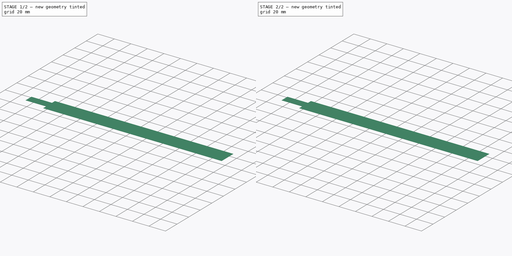
[diagram: build sequence overview — one tinted view per stage of 2, left to right]
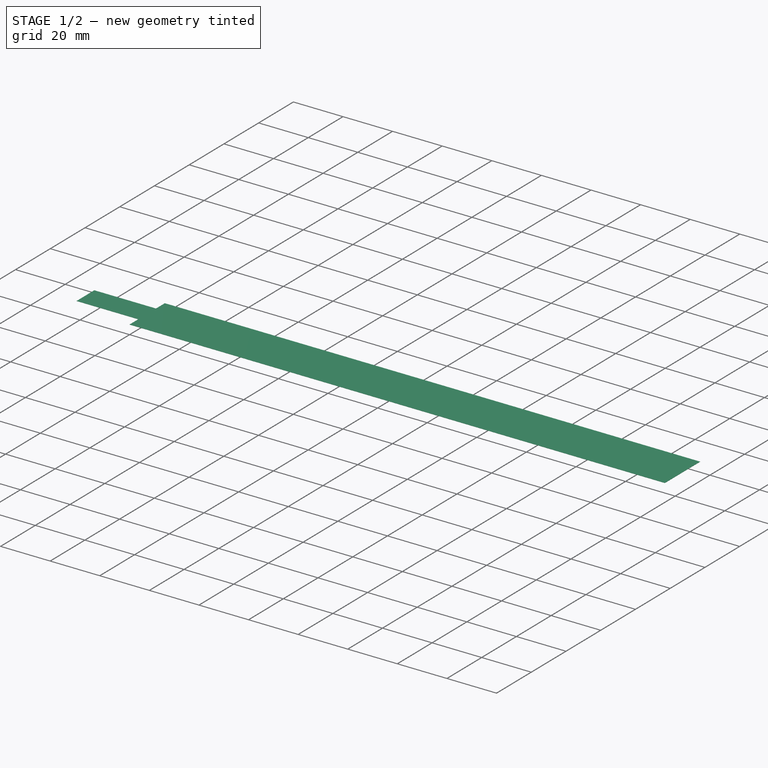
[diagram: stage 1 of 2 — iso view after this stage's code; geometry added in this stage tinted green]
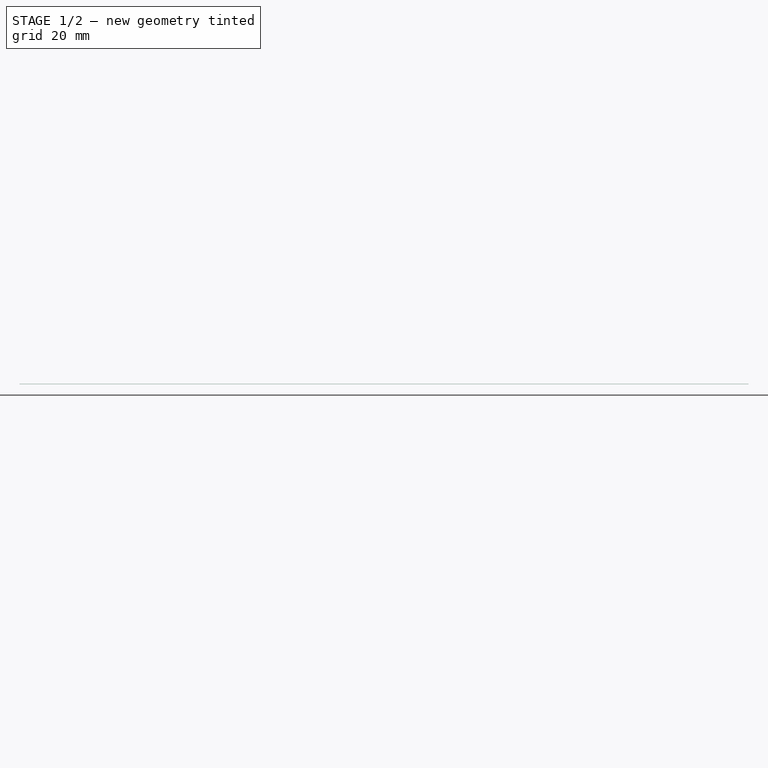
[diagram: stage 1 of 2 — front view after this stage's code; geometry added in this stage tinted green]
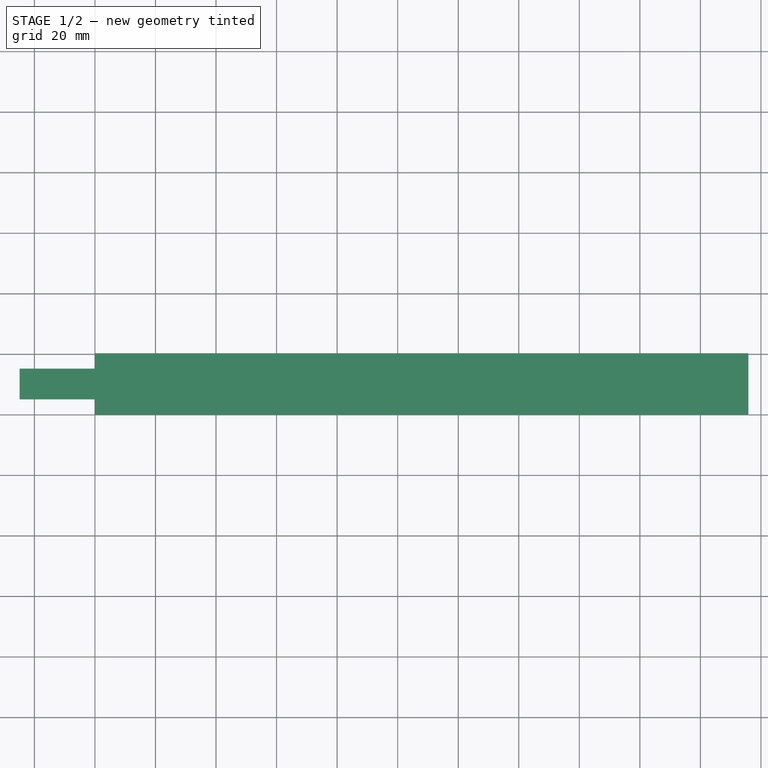
[diagram: stage 1 of 2 — top view after this stage's code; geometry added in this stage tinted green]
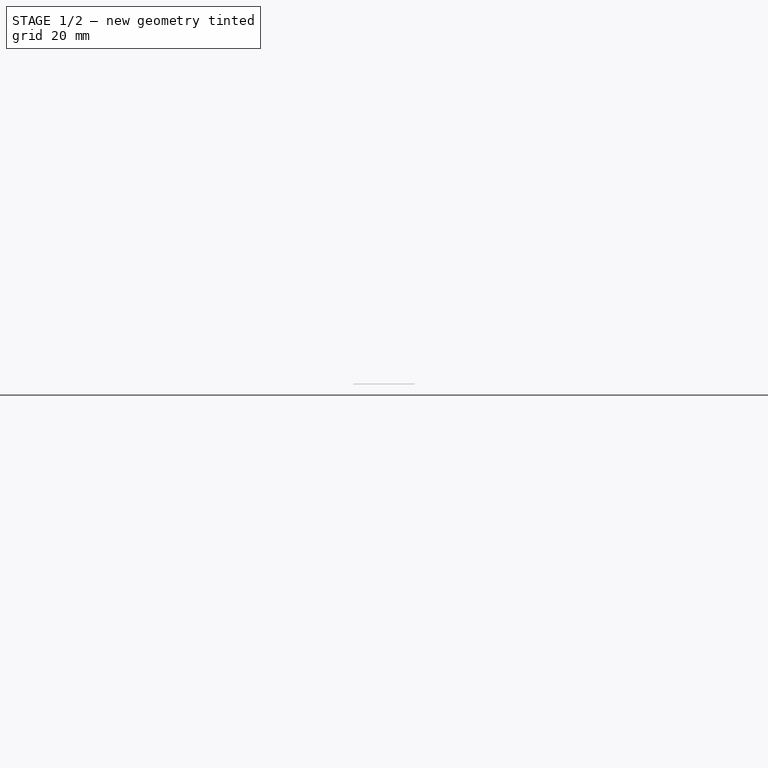
[diagram: stage 1 of 2 — right view after this stage's code; geometry added in this stage tinted green]
FCSTD DOCUMENT  (FreeCAD 0.21R33668 +26 (Git))
Label: MagnetoPotBus7
License: All rights reserved
LicenseURL: http://en.wikipedia.org/wiki/All_rights_reserved
objects: PartDesign::SubShapeBinder×2, Sketcher::SketchObject×2, PartDesign::Pad×1, PartDesign::Pocket×1, PartDesign::Body×1
note: 9 computed .brp shape members not serialized (recipe doc carries the construction recipe); baked Part::Feature solids carry a one-line shape summary decoded from their .brp
EXTERNAL_REF file=MagnetoPot/MagnetoPot.FCStd obj=Body
EXTERNAL_REF file=NormalConnectorWithPin.FCStd obj=Body
EXTERNAL_REF file=MagnetoPot/MagnetoPot.FCStd obj=Sketch
EXTERNAL_REF file=NormalConnectorWithPin.FCStd obj=Sketch002
EXTERNAL_REF file=NormalConnectorWithPin.FCStd obj=Sketch003

FEATURE [PartDesign::SubShapeBinder] Binder  label="MagnetoPot"
  BindCopyOnChange = 0
  BindMode = 0
  ClaimChildren = false
  Context = -> Body [Binder.]
  Fuse = false
  MakeFace = true
  OffsetFill = false
  OffsetIntersection = false
  OffsetJoinType = 0
  OffsetOpenResult = false
  PartialLoad = false
  Relative = true
  Support = -> [<external MagnetoPot/MagnetoPot.FCStd>#Body]
  _Version = 2
FEATURE [PartDesign::SubShapeBinder] Binder002  label="BusHoles"
  BindCopyOnChange = 0
  BindMode = 0
  ClaimChildren = false
  Context = -> Body [Binder002.]
  Fuse = false
  MakeFace = true
  OffsetFill = false
  OffsetIntersection = false
  OffsetJoinType = 0
  OffsetOpenResult = false
  PartialLoad = false
  Relative = true
  Support = -> [<external NormalConnectorWithPin.FCStd>#Body[Pocket.Sketch002.]]
  _Version = 2
FEATURE [Sketcher::SketchObject] Sketch
  ExternalGeometry = -> [Binder]
  FullyConstrained = true
  MapMode = 5
  Placement = pos=(0,0,3.5) rot=(0,0,1;0rad)
  Support = -> [Binder]
  sketch-geometry (9):
    g0: LineSegment StartX=0 StartY=20.3 StartZ=0 EndX=215.86 EndY=20.3 EndZ=0
    g1: LineSegment StartX=215.86 StartY=20.3 StartZ=0 EndX=215.86 EndY=0 EndZ=0
    g2: LineSegment StartX=215.86 StartY=0 StartZ=0 EndX=0 EndY=0 EndZ=0
    g3: LineSegment StartX=0 StartY=0 StartZ=0 EndX=0 EndY=20.3 EndZ=0
    g4: LineSegment StartX=-24.89 StartY=15.23 StartZ=0 EndX=0 EndY=15.23 EndZ=0
    g5: LineSegment StartX=0 StartY=5.07 StartZ=0 EndX=-24.89 EndY=5.07 EndZ=0
    g6: LineSegment StartX=-24.89 StartY=5.07 StartZ=0 EndX=-24.89 EndY=15.23 EndZ=0
    g7: LineSegment StartX=0 StartY=15.23 StartZ=0 EndX=0 EndY=20.3 EndZ=0
    g8: LineSegment StartX=0 StartY=5.07 StartZ=0 EndX=0 EndY=0 EndZ=0
  constraints (22):
    c: Coincident(g0,g1)
    c: Coincident(g1,g2)
    c: Coincident(g2,g3)
    c: Coincident(g3,g0)
    c: Horizontal(g0)
    c: Horizontal(g2)
    c: Vertical(g1)
    c: Vertical(g3)
    c: Coincident(g0,g-3)
    c: Coincident(g1,g-4)
    c: Coincident(g5,g6)
    c: Coincident(g6,g4)
    c: Horizontal(g4)
    c: Horizontal(g5)
    c: Coincident(g4,g-5)
    c: PointOnObject(g5,g3)
    c: Coincident(g5,g-5)
    c: Coincident(g7,g4)
    c: Coincident(g7,g0)
    c: Vertical(g7)
    c: Coincident(g8,g5)
    c: Coincident(g8,g2)
FEATURE [PartDesign::Pad] Pad
  Direction = (0,0,1)
  Length = 0.07
  Length2 = 10
  Profile = -> Sketch
  ReferenceAxis = -> Sketch [N_Axis]
  Type = 0
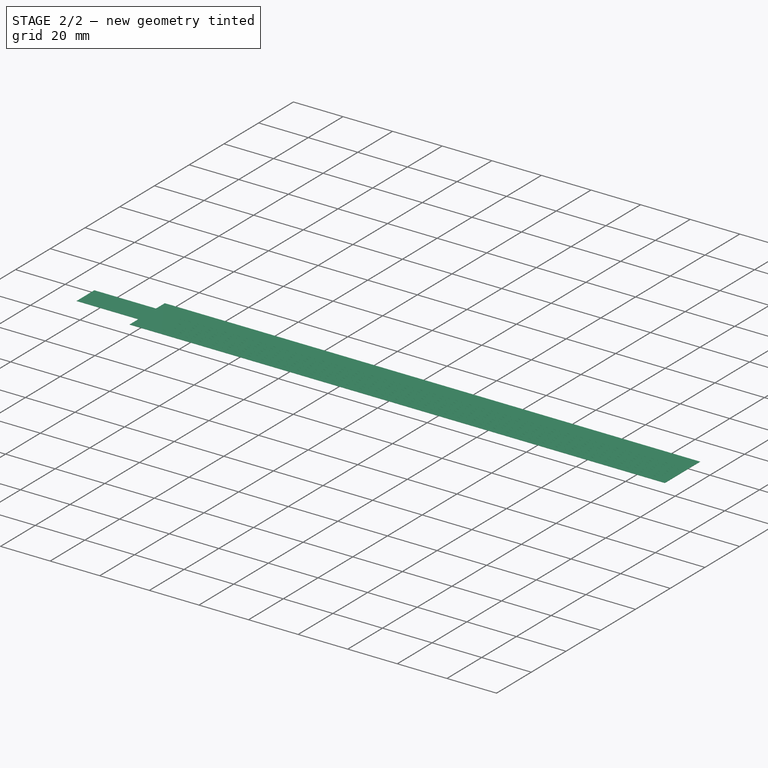
[diagram: stage 2 of 2 — iso view after this stage's code; geometry added in this stage tinted green]
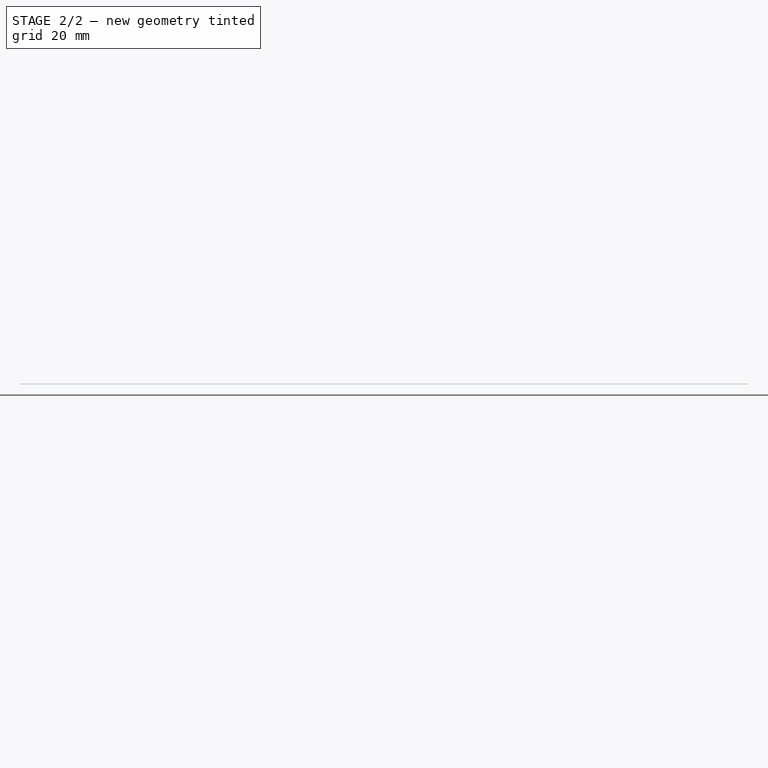
[diagram: stage 2 of 2 — front view after this stage's code; geometry added in this stage tinted green]
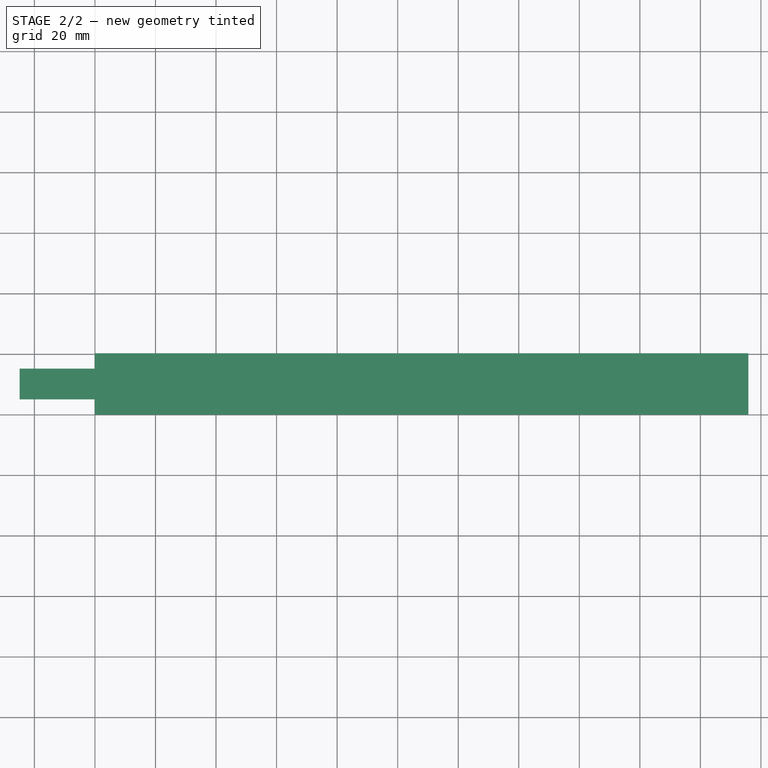
[diagram: stage 2 of 2 — top view after this stage's code; geometry added in this stage tinted green]
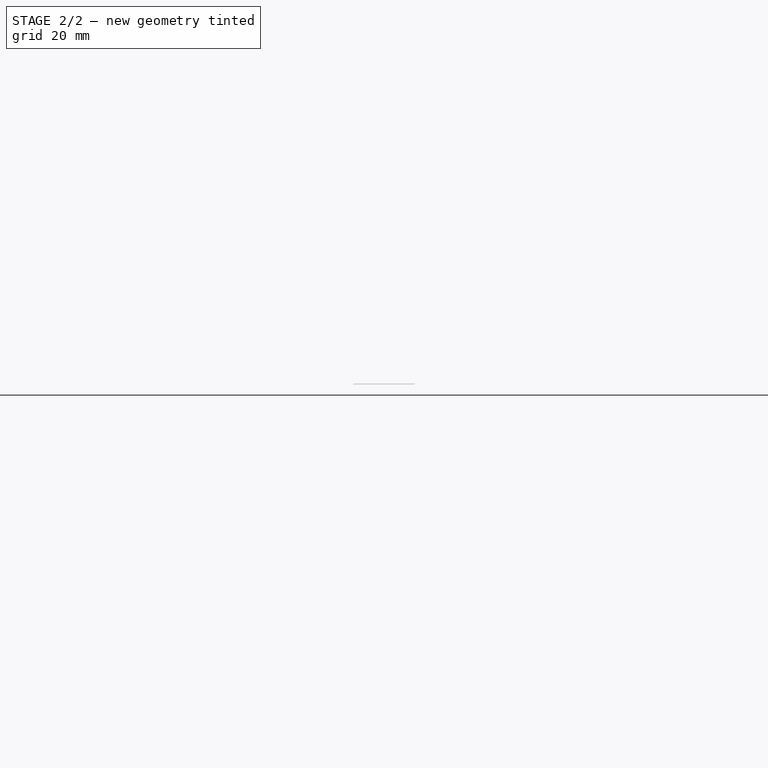
[diagram: stage 2 of 2 — right view after this stage's code; geometry added in this stage tinted green]
FEATURE [Sketcher::SketchObject] Sketch001
  ExternalGeometry = -> [Binder002,Pad]
  FullyConstrained = true
  MapMode = 5
  Placement = pos=(0,0,3.57) rot=(0,0,1;0rad)
  Support = -> [Pad]
  expr: .Constraints.ActiveLength = <<MagnetoPot>>#<<Sketch>>.Constraints.ActiveLength
  expr: Constraints[10] = .Constraints.BusVertical
  expr: Constraints[11] = .Constraints.BusHorizontal
  expr: Constraints[12] = .Constraints.BusVertical
  expr: Constraints[13] = .Constraints.BusVertical
  expr: Constraints[20] = .Constraints.BusOffset
  expr: Constraints[22] = NormalConnectorWithPin#Sketch002.Constraints.BusOutsideDistance
  expr: Constraints[45] = .Constraints.ActiveLength
  expr: Constraints[5] = NormalConnectorWithPin#Sketch003.Constraints.ActiveStartToBusDistance
  expr: Constraints[8] = .Constraints.BusVertical
  expr: Constraints[9] = .Constraints.BusVertical
  sketch-geometry (74):
    g0: GeomPoint X=7.93 Y=20.3 Z=0
    g1: GeomPoint X=207.93 Y=20.3 Z=0
    g2: GeomPoint X=107.93 Y=20.3 Z=0
    g3: GeomPoint X=11.93 Y=20.3 Z=0
    g4: GeomPoint X=11.93 Y=12.65 Z=0
    g5: GeomPoint X=11.93 Y=9.15 Z=0
    g6: GeomPoint X=11.93 Y=5.65 Z=0
    g7: GeomPoint X=11.93 Y=2.15 Z=0
    g8: GeomPoint X=14.9611 Y=3.9 Z=0
    g9: GeomPoint X=14.9611 Y=7.4 Z=0
    g10: GeomPoint X=14.9611 Y=10.9 Z=0
    g11: LineSegment StartX=15.4611 StartY=6.9 StartZ=0 EndX=215.461 EndY=6.9 EndZ=0
    g12: LineSegment StartX=215.461 StartY=6.9 StartZ=0 EndX=215.461 EndY=7.9 EndZ=0
    g13: LineSegment StartX=215.461 StartY=7.9 StartZ=0 EndX=15.4611 EndY=7.9 EndZ=0
    g14: LineSegment StartX=15.4611 StartY=7.9 StartZ=0 EndX=15.4611 EndY=6.9 EndZ=0
    g15: Circle CenterX=14.9611 CenterY=7.4 CenterZ=0 NormalX=0 NormalY=0 NormalZ=1 AngleXU=0 Radius=0.5
    g16: GeomPoint X=15.4611 Y=7.4 Z=0
    g17: Circle CenterX=215.961 CenterY=7.4 CenterZ=0 NormalX=0 NormalY=0 NormalZ=1 AngleXU=0 Radius=0.5
    g18: LineSegment StartX=15.4611 StartY=6.9 StartZ=0 EndX=14.4611 EndY=7.9 EndZ=0
    g19: LineSegment StartX=215.461 StartY=6.9 StartZ=0 EndX=216.461 EndY=7.9 EndZ=0
    g20: LineSegment StartX=11.43 StartY=2.65 StartZ=0 EndX=211.43 EndY=2.65 EndZ=0
    g21: LineSegment StartX=211.43 StartY=2.65 StartZ=0 EndX=211.43 EndY=1.65 EndZ=0
    g22: LineSegment StartX=211.43 StartY=1.65 StartZ=0 EndX=11.43 EndY=1.65 EndZ=0
    g23: LineSegment StartX=11.43 StartY=1.65 StartZ=0 EndX=11.43 EndY=2.65 EndZ=0
    g24: Circle CenterX=11.93 CenterY=2.15 CenterZ=0 NormalX=0 NormalY=0 NormalZ=1 AngleXU=0 Radius=0.5
    g25: GeomPoint X=11.43 Y=2.15 Z=0
    g26: Circle CenterX=210.93 CenterY=2.15 CenterZ=0 NormalX=0 NormalY=0 NormalZ=1 AngleXU=0 Radius=0.5
    g27: LineSegment StartX=11.43 StartY=2.65 StartZ=0 EndX=12.43 EndY=1.65 EndZ=0
    g28: LineSegment StartX=211.43 StartY=2.65 StartZ=0 EndX=210.43 EndY=1.65 EndZ=0
    g29: LineSegment StartX=14.4611 StartY=4.4 StartZ=0 EndX=214.461 EndY=4.4 EndZ=0
    g30: LineSegment StartX=214.461 StartY=4.4 StartZ=0 EndX=214.461 EndY=3.4 EndZ=0
    g31: LineSegment StartX=214.461 StartY=3.4 StartZ=0 EndX=14.4611 EndY=3.4 EndZ=0
    g32: LineSegment StartX=14.4611 StartY=3.4 StartZ=0 EndX=14.4611 EndY=4.4 EndZ=0
    g33: Circle CenterX=14.9611 CenterY=3.9 CenterZ=0 NormalX=0 NormalY=0 NormalZ=1 AngleXU=0 Radius=0.5
    g34: GeomPoint X=14.4611 Y=3.9 Z=0
    g35: Circle CenterX=213.961 CenterY=3.9 CenterZ=0 NormalX=0 NormalY=0 NormalZ=1 AngleXU=0 Radius=0.5
    g36: LineSegment StartX=14.4611 StartY=4.4 StartZ=0 EndX=15.4611 EndY=3.4 EndZ=0
    g37: LineSegment StartX=214.461 StartY=4.4 StartZ=0 EndX=213.461 EndY=3.4 EndZ=0
    g38: LineSegment StartX=11.43 StartY=9.65 StartZ=0 EndX=211.43 EndY=9.65 EndZ=0
    g39: LineSegment StartX=211.43 StartY=9.65 StartZ=0 EndX=211.43 EndY=8.65 EndZ=0
    g40: LineSegment StartX=211.43 StartY=8.65 StartZ=0 EndX=11.43 EndY=8.65 EndZ=0
    g41: LineSegment StartX=11.43 StartY=8.65 StartZ=0 EndX=11.43 EndY=9.65 EndZ=0
    g42: Circle CenterX=11.93 CenterY=9.15 CenterZ=0 NormalX=0 NormalY=0 NormalZ=1 AngleXU=0 Radius=0.5
    g43: GeomPoint X=11.43 Y=9.15 Z=0
    g44: Circle CenterX=210.93 CenterY=9.15 CenterZ=0 NormalX=0 NormalY=0 NormalZ=1 AngleXU=0 Radius=0.5
    g45: LineSegment StartX=11.43 StartY=9.65 StartZ=0 EndX=12.43 EndY=8.65 EndZ=0
    g46: LineSegment StartX=211.43 StartY=9.65 StartZ=0 EndX=210.43 EndY=8.65 EndZ=0
    g47: LineSegment StartX=11.43 StartY=13.15 StartZ=0 EndX=211.43 EndY=13.15 EndZ=0
    g48: LineSegment StartX=211.43 StartY=13.15 StartZ=0 EndX=211.43 EndY=12.15 EndZ=0
    g49: LineSegment StartX=211.43 StartY=12.15 StartZ=0 EndX=11.43 EndY=12.15 EndZ=0
    g50: LineSegment StartX=11.43 StartY=12.15 StartZ=0 EndX=11.43 EndY=13.15 EndZ=0
    g51: Circle CenterX=11.93 CenterY=12.65 CenterZ=0 NormalX=0 NormalY=0 NormalZ=1 AngleXU=0 Radius=0.5
    g52: GeomPoint X=11.43 Y=12.65 Z=0
    g53: Circle CenterX=210.93 CenterY=12.65 CenterZ=0 NormalX=0 NormalY=0 NormalZ=1 AngleXU=0 Radius=0.5
    g54: LineSegment StartX=11.43 StartY=13.15 StartZ=0 EndX=12.43 EndY=12.15 EndZ=0
    g55: LineSegment StartX=211.43 StartY=13.15 StartZ=0 EndX=210.43 EndY=12.15 EndZ=0
    g56: LineSegment StartX=12.43 StartY=5.15 StartZ=0 EndX=212.43 EndY=5.15 EndZ=0
    g57: LineSegment StartX=212.43 StartY=5.15 StartZ=0 EndX=212.43 EndY=6.15 EndZ=0
    g58: LineSegment StartX=212.43 StartY=6.15 StartZ=0 EndX=12.43 EndY=6.15 EndZ=0
    g59: LineSegment StartX=12.43 StartY=6.15 StartZ=0 EndX=12.43 EndY=5.15 EndZ=0
    g60: Circle CenterX=11.93 CenterY=5.65 CenterZ=0 NormalX=0 NormalY=0 NormalZ=1 AngleXU=0 Radius=0.5
    g61: GeomPoint X=12.43 Y=5.65 Z=0
    g62: Circle CenterX=212.93 CenterY=5.65 CenterZ=0 NormalX=0 NormalY=0 NormalZ=1 AngleXU=0 Radius=0.5
    g63: LineSegment StartX=12.43 StartY=5.15 StartZ=0 EndX=11.43 EndY=6.15 EndZ=0
    g64: LineSegment StartX=212.43 StartY=5.15 StartZ=0 EndX=213.43 EndY=6.15 EndZ=0
    g65: LineSegment StartX=15.4611 StartY=10.4 StartZ=0 EndX=215.461 EndY=10.4 EndZ=0
    g66: LineSegment StartX=215.461 StartY=10.4 StartZ=0 EndX=215.461 EndY=11.4 EndZ=0
    g67: LineSegment StartX=215.461 StartY=11.4 StartZ=0 EndX=15.4611 EndY=11.4 EndZ=0
    g68: LineSegment StartX=15.4611 StartY=11.4 StartZ=0 EndX=15.4611 EndY=10.4 EndZ=0
    g69: Circle CenterX=14.9611 CenterY=10.9 CenterZ=0 NormalX=0 NormalY=0 NormalZ=1 AngleXU=0 Radius=0.5
    g70: GeomPoint X=15.4611 Y=10.9 Z=0
    g71: Circle CenterX=215.961 CenterY=10.9 CenterZ=0 NormalX=0 NormalY=0 NormalZ=1 AngleXU=0 Radius=0.5
    g72: LineSegment StartX=15.4611 StartY=10.4 StartZ=0 EndX=14.4611 EndY=11.4 EndZ=0
    g73: LineSegment StartX=215.461 StartY=10.4 StartZ=0 EndX=216.461 EndY=11.4 EndZ=0
  constraints (203):
    c: PointOnObject(g0,g-17)
    c: Symmetric(g1,g0,g2)
    c: Symmetric(g-17,g-17,g2)
    c: DistanceX(g0,g1) = 200  'ActiveLength'
    c: PointOnObject(g3,g-17)
    c: DistanceX(g0,g3) = 4
    c: DistanceY(g-12,g-10) = 3.5  'BusVertical'
    c: DistanceX(g-10,g-11) = 3.03109  'BusHorizontal'
    c: DistanceY(g5,g4) = 3.5
    c: DistanceY(g6,g5) = 3.5
    c: DistanceY(g7,g6) = 3.5
    c: DistanceX(g7,g8) = 3.03109
    c: DistanceY(g8,g9) = 3.5
    c: DistanceY(g9,g10) = 3.5
    c: Vertical(g9,g8)
    c: Vertical(g9,g10)
    c: Vertical(g4,g5)
    c: Vertical(g5,g6)
    c: Vertical(g6,g7)
    c: DistanceY(g-11,g-10) = 1.75  'BusOffset'
    c: DistanceY(g10,g4) = 1.75
    c: Vertical(g3,g4)
    c: DistanceY(g-1,g7) = 2.15
    c: Coincident(g11,g12)
    c: Coincident(g12,g13)
    c: Coincident(g13,g14)
    c: Coincident(g14,g11)
    c: Horizontal(g11)
    c: Horizontal(g13)
    c: Vertical(g12)
    c: Vertical(g14)
    c: Symmetric(g11,g13,g16)
    c: Horizontal(g15,g16)
    c: Horizontal(g17,g15)
    c: Diameter(g17) = 1  'TraceWidth'
    c: Tangent(g17,g11)
    c: Tangent(g15,g11)
    c: Coincident(g18,g11)
    c: PointOnObject(g18,g13)
    c: PointOnObject(g15,g18)
    c: Coincident(g19,g11)
    c: PointOnObject(g19,g13)
    c: PointOnObject(g17,g19)
    c: Angle(g14,g18) = 0.785398
    c: Angle(g19,g12) = 0.785398
    c: DistanceX(g11,g11) = 200
    c: Coincident(g20,g21)
    c: Coincident(g21,g22)
    c: Coincident(g22,g23)
    c: Coincident(g23,g20)
    c: Horizontal(g20)
    c: Horizontal(g22)
    c: Vertical(g21)
    c: Vertical(g23)
    c: Symmetric(g20,g22,g25)
    c: Horizontal(g24,g25)
    c: Horizontal(g26,g24)
    c: Equal(g17,g26) = 5  'TraceWidth'
    c: Tangent(g26,g20)
    c: Tangent(g24,g20)
    c: Coincident(g27,g20)
    c: PointOnObject(g27,g22)
    c: PointOnObject(g24,g27)
    c: Coincident(g28,g20)
    c: PointOnObject(g28,g22)
    c: PointOnObject(g26,g28)
    c: Angle(g23,g27) = 0.785398
    c: Angle(g28,g21) = 0.785398
    c: Equal(g11,g20) = 200
    c: Coincident(g24,g7)
    c: Coincident(g29,g30)
    c: Coincident(g30,g31)
    c: Coincident(g31,g32)
    c: Coincident(g32,g29)
    c: Horizontal(g29)
    c: Horizontal(g31)
    c: Vertical(g30)
    c: Vertical(g32)
    c: Symmetric(g29,g31,g34)
    c: Horizontal(g33,g34)
    c: Horizontal(g35,g33)
    c: Equal(g17,g35) = 5  'TraceWidth'
    c: Tangent(g35,g29)
    c: Tangent(g33,g29)
    c: Coincident(g36,g29)
    c: PointOnObject(g36,g31)
    c: PointOnObject(g33,g36)
    c: Coincident(g37,g29)
    c: PointOnObject(g37,g31)
    c: PointOnObject(g35,g37)
    c: Angle(g32,g36) = 0.785398
    c: Angle(g37,g30) = 0.785398
    c: Equal(g11,g29) = 200
    c: Coincident(g33,g8)
    c: Coincident(g38,g39)
    c: Coincident(g39,g40)
    c: Coincident(g40,g41)
    c: Coincident(g41,g38)
    c: Horizontal(g38)
    c: Horizontal(g40)
    c: Vertical(g39)
    c: Vertical(g41)
    c: Symmetric(g38,g40,g43)
    c: Horizontal(g42,g43)
    c: Horizontal(g44,g42)
    c: Equal(g17,g44) = 1  'TraceWidth'
    c: Tangent(g44,g38)
    c: Tangent(g42,g38)
    c: Coincident(g45,g38)
    c: PointOnObject(g45,g40)
    c: PointOnObject(g42,g45)
    c: Coincident(g46,g38)
    c: PointOnObject(g46,g40)
    c: PointOnObject(g44,g46)
    c: Angle(g41,g45) = 0.785398
    c: Angle(g46,g39) = 0.785398
    c: Equal(g11,g38) = 200
    c: Coincident(g47,g48)
    c: Coincident(g48,g49)
    c: Coincident(g49,g50)
    c: Coincident(g50,g47)
    c: Horizontal(g47)
    c: Horizontal(g49)
    c: Vertical(g48)
    c: Vertical(g50)
    c: Symmetric(g47,g49,g52)
    c: Horizontal(g51,g52)
    c: Horizontal(g53,g51)
    c: Equal(g17,g53) = 1  'TraceWidth'
    c: Tangent(g53,g47)
    c: Tangent(g51,g47)
    c: Coincident(g54,g47)
    c: PointOnObject(g54,g49)
    c: PointOnObject(g51,g54)
    c: Coincident(g55,g47)
    c: PointOnObject(g55,g49)
    c: PointOnObject(g53,g55)
    c: Angle(g50,g54) = 0.785398
    c: Angle(g55,g48) = 0.785398
    c: Equal(g11,g47) = 200
    c: Coincident(g56,g57)
    c: Coincident(g57,g58)
    c: Coincident(g58,g59)
    c: Coincident(g59,g56)
    c: Horizontal(g56)
    c: Horizontal(g58)
    c: Vertical(g57)
    c: Vertical(g59)
    c: Symmetric(g56,g58,g61)
    c: Horizontal(g60,g61)
    c: Horizontal(g62,g60)
    c: Equal(g17,g62) = 1  'TraceWidth'
    c: Tangent(g62,g56)
    c: Tangent(g60,g56)
    c: Coincident(g63,g56)
    c: PointOnObject(g63,g58)
    c: PointOnObject(g60,g63)
    c: Coincident(g64,g56)
    c: PointOnObject(g64,g58)
    c: PointOnObject(g62,g64)
    c: Angle(g59,g63) = 0.785398
    c: Angle(g64,g57) = 0.785398
    c: Equal(g11,g56) = 200
    c: Coincident(g51,g4)
    c: Coincident(g42,g5)
    c: Coincident(g60,g6)
    c: Coincident(g65,g66)
    c: Coincident(g66,g67)
    c: Coincident(g67,g68)
    c: Coincident(g68,g65)
    c: Horizontal(g65)
    c: Horizontal(g67)
    c: Vertical(g66)
    c: Vertical(g68)
    c: Symmetric(g65,g67,g70)
    c: Horizontal(g69,g70)
    c: Horizontal(g71,g69)
    c: Equal(g17,g71) = 1  'TraceWidth'
    c: Tangent(g71,g65)
    c: Tangent(g69,g65)
    c: Coincident(g72,g65)
    c: PointOnObject(g72,g67)
    c: PointOnObject(g69,g72)
    c: Coincident(g73,g65)
    c: PointOnObject(g73,g67)
    c: PointOnObject(g71,g73)
    c: Angle(g68,g72) = 0.785398
    c: Angle(g73,g66) = 0.785398
    c: Equal(g11,g65) = 200
    c: Coincident(g69,g10)
    c: Coincident(g15,g9)
    c: DistanceY(g47,g-17) = 7.15
    c: DistanceY(g48,g47) = 1
    c: DistanceX(g-17,g47) = 11.43
    c: DistanceY(g22) = 1.65
    c: DistanceY(g56) = 5.15
    c: DistanceY(g11) = 6.9
    c: DistanceY(g40) = 8.65
    c: DistanceY(g49) = 12.15
    c: DistanceY(g31) = 3.4
    c: DistanceY(g65) = 10.4
    c: DistanceY(g20,g56) = 2.5
    c: DistanceX(g31) = 14.4611
FEATURE [PartDesign::Pocket] Pocket
  BaseFeature = -> Pad
  Direction = (0,0,-1)
  Length = 0.007
  Length2 = 5
  Profile = -> Sketch001
  ReferenceAxis = -> Sketch001 [N_Axis]
  Type = 0
  expr: Length = <<Pad>>.Length * 0.1
FEATURE [PartDesign::Body] Body  label="FlexPCB"
  Group = -> [Binder,Binder002,Sketch,Pad,Sketch001,Pocket]
  Origin = -> Origin
  Tip = -> Pocket
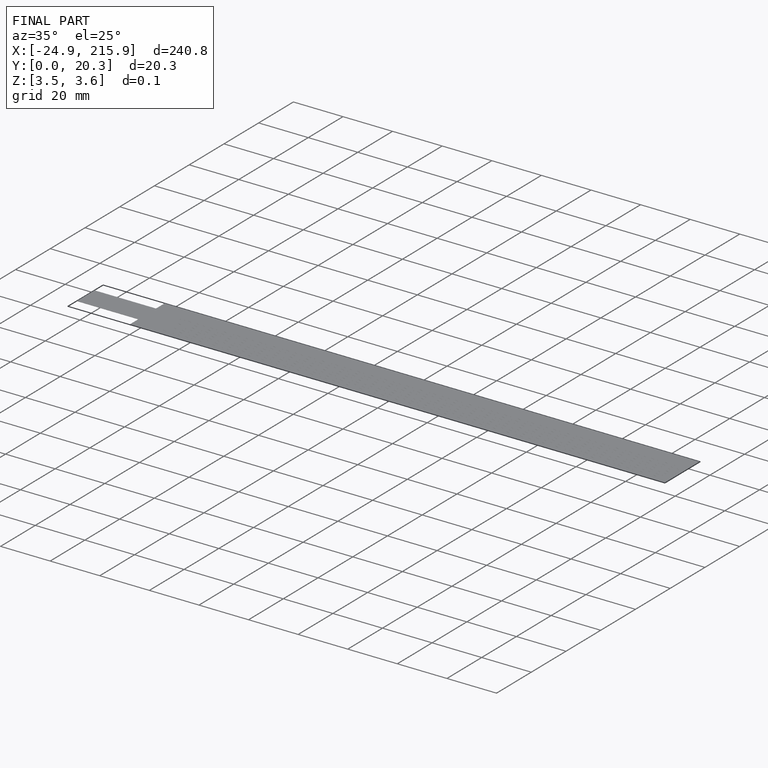
[diagram: finished part — iso view with bounding-box wireframe]
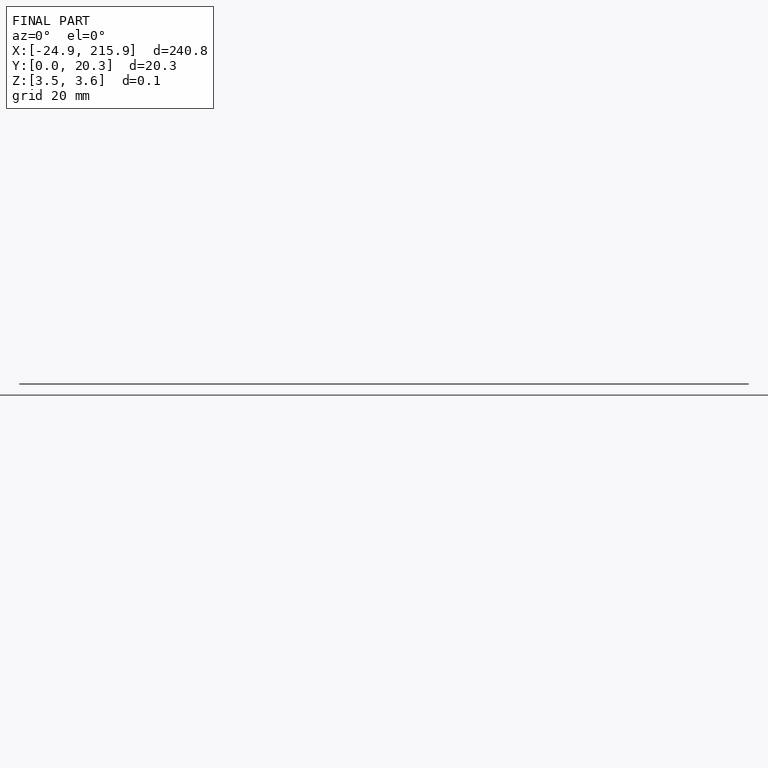
[diagram: finished part — front view with bounding-box wireframe]
